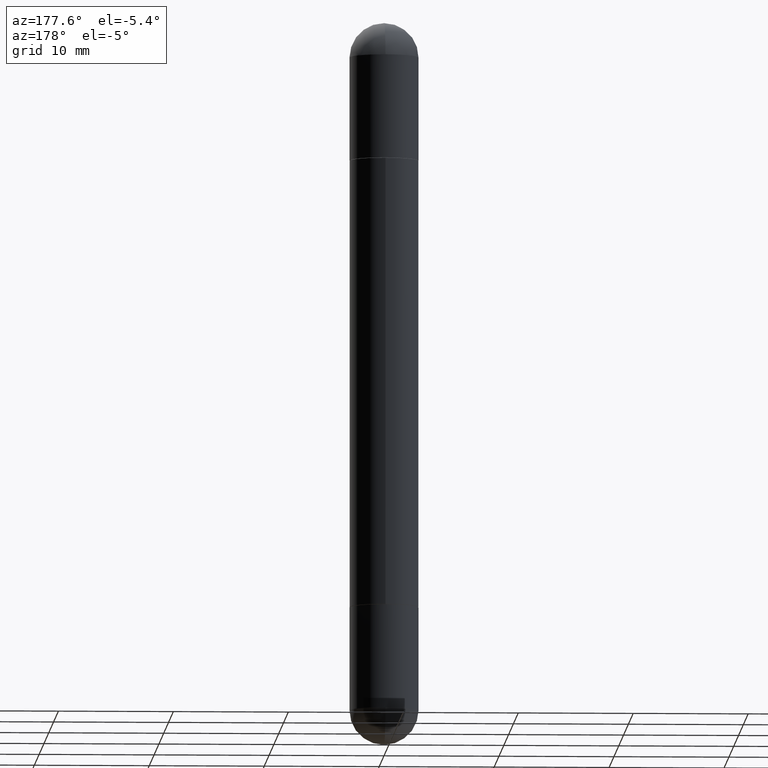
[diagram: clean part render]
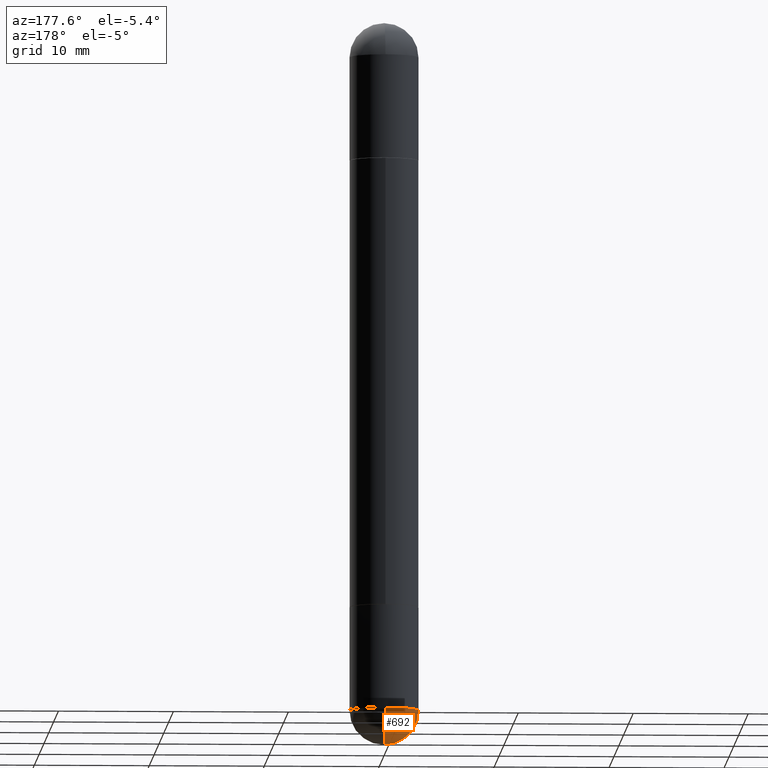
[diagram: same view with one face highlighted and labeled with its STEP entity id]
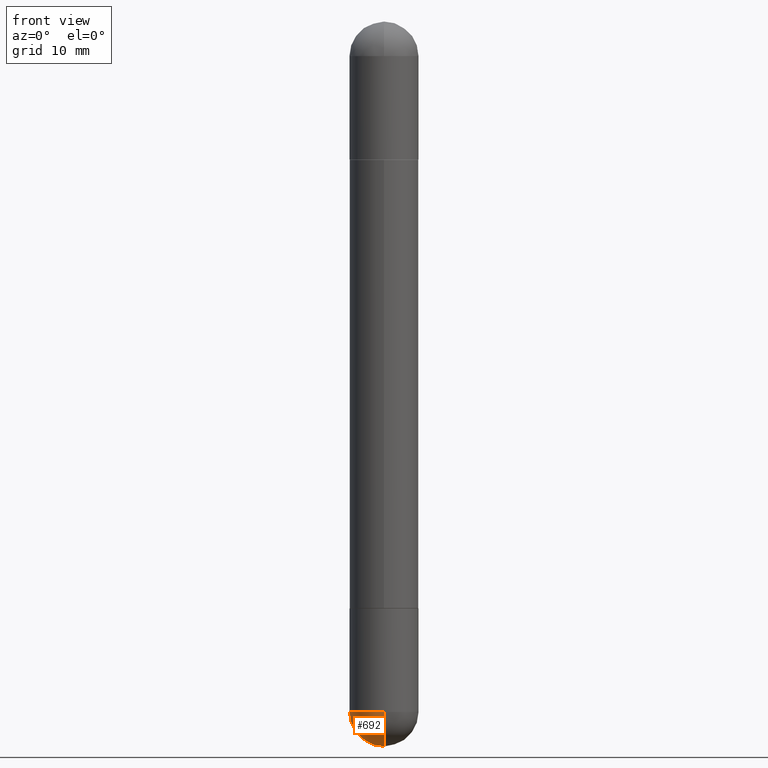
[diagram: same view with one face highlighted and labeled with its STEP entity id]
A machine part, auxiliary view. The second image highlights one B-rep face of the part: STEP entity #692.
A second angle (front view) of the same face is appended — the face is thin or edge-on in the first view.
In plain terms, the highlighted spherical surface has radius 2.9997 mm.
Its self-contained STEP definition (entity closure, byte-faithful):
#46 = CARTESIAN_POINT ( 'NONE',  ( 5.776686413970530874E-29, -8.247577218615279626E-15, -2.362200000000000077 ) ) ;
#49 = CARTESIAN_POINT ( 'NONE',  ( 5.739426259004713893E-29, -9.126871993523741848E-15, -2.480300000000000171 ) ) ;
#55 = DIRECTION ( 'NONE',  ( 1.000000000000000000, -6.982962677686265133E-15, 0.000000000000000000 ) ) ;
#102 = DIRECTION ( 'NONE',  ( 6.982962677686265133E-15, 1.000000000000000000, 0.000000000000000000 ) ) ;
#106 = VERTEX_POINT ( 'NONE', #483 ) ;
#126 = AXIS2_PLACEMENT_3D ( 'NONE', #670, #357, #785 ) ;
#141 = CIRCLE ( 'NONE', #607, 0.1180999999999999966 ) ;
#179 = EDGE_CURVE ( 'NONE', #575, #106, #671, .T. ) ;
#189 = CARTESIAN_POINT ( 'NONE',  ( 5.445566636056644627E-29, -8.721759586755329923E-15, -2.362200000000000077 ) ) ;
#222 = AXIS2_PLACEMENT_3D ( 'NONE', #323, #264, #512 ) ;
#264 = DIRECTION ( 'NONE',  ( -1.000000000000000000, 6.982962677686265922E-15, -4.883557194083112901E-29 ) ) ;
#267 = SPHERICAL_SURFACE ( 'NONE', #222, 0.1181000000000002603 ) ;
#290 = EDGE_CURVE ( 'NONE', #733, #511, #520, .T. ) ;
#308 = DIRECTION ( 'NONE',  ( 1.000000000000000000, -6.982962677686265133E-15, 0.000000000000000000 ) ) ;
#323 = CARTESIAN_POINT ( 'NONE',  ( 5.445566636056644627E-29, -8.721759586755329923E-15, -2.362200000000000077 ) ) ;
#357 = DIRECTION ( 'NONE',  ( -1.000000000000000000, 7.105427357601001070E-15, -4.926315508542082329E-29 ) ) ;
#380 = DIRECTION ( 'NONE',  ( 1.000000000000000000, -6.982962677686265922E-15, 4.883557194083112340E-29 ) ) ;
#387 = CIRCLE ( 'NONE', #596, 0.1181000000000002603 ) ;
#394 = ORIENTED_EDGE ( 'NONE', *, *, #290, .F. ) ;
#429 = DIRECTION ( 'NONE',  ( -2.445468806185136597E-29, 3.491481338843145583E-15, 1.000000000000000000 ) ) ;
#483 = CARTESIAN_POINT ( 'NONE',  ( -8.391509709326229768E-16, -0.1181000000000086009, -2.362199999999999633 ) ) ;
#484 = EDGE_LOOP ( 'NONE', ( #806, #667, #509, #394 ) ) ;
#509 = ORIENTED_EDGE ( 'NONE', *, *, #555, .F. ) ;
#511 = VERTEX_POINT ( 'NONE', #740 ) ;
#512 = DIRECTION ( 'NONE',  ( 6.982962677686265922E-15, 1.000000000000000000, -4.626330217890359870E-15 ) ) ;
#518 = EDGE_CURVE ( 'NONE', #575, #733, #387, .T. ) ;
#520 = CIRCLE ( 'NONE', #536, 0.1180999999999999966 ) ;
#536 = AXIS2_PLACEMENT_3D ( 'NONE', #684, #619, #308 ) ;
#555 = EDGE_CURVE ( 'NONE', #511, #106, #141, .T. ) ;
#574 = CARTESIAN_POINT ( 'NONE',  ( 8.246878922348049620E-16, 0.1180999999999916283, -2.362200000000000966 ) ) ;
#575 = VERTEX_POINT ( 'NONE', #49 ) ;
#577 = FACE_OUTER_BOUND ( 'NONE', #484, .T. ) ;
#596 = AXIS2_PLACEMENT_3D ( 'NONE', #189, #380, #102 ) ;
#607 = AXIS2_PLACEMENT_3D ( 'NONE', #46, #429, #55 ) ;
#619 = DIRECTION ( 'NONE',  ( -2.445468806185136597E-29, 3.491481338843145583E-15, 1.000000000000000000 ) ) ;
#667 = ORIENTED_EDGE ( 'NONE', *, *, #179, .T. ) ;
#670 = CARTESIAN_POINT ( 'NONE',  ( 5.445566636056644627E-29, -8.721759586755329923E-15, -2.362200000000000077 ) ) ;
#671 = CIRCLE ( 'NONE', #126, 0.1181000000000002603 ) ;
#684 = CARTESIAN_POINT ( 'NONE',  ( 5.776686413970530874E-29, -8.247577218615279626E-15, -2.362200000000000077 ) ) ;
#692 = ADVANCED_FACE ( 'NONE', ( #577 ), #267, .T. ) ;
#733 = VERTEX_POINT ( 'NONE', #574 ) ;
#740 = CARTESIAN_POINT ( 'NONE',  ( -0.1180999999999999966, -6.789910328506538655E-15, -2.362200000000000077 ) ) ;
#785 = DIRECTION ( 'NONE',  ( -7.105427357601000281E-15, -1.000000000000000000, 0.000000000000000000 ) ) ;
#806 = ORIENTED_EDGE ( 'NONE', *, *, #518, .F. ) ;